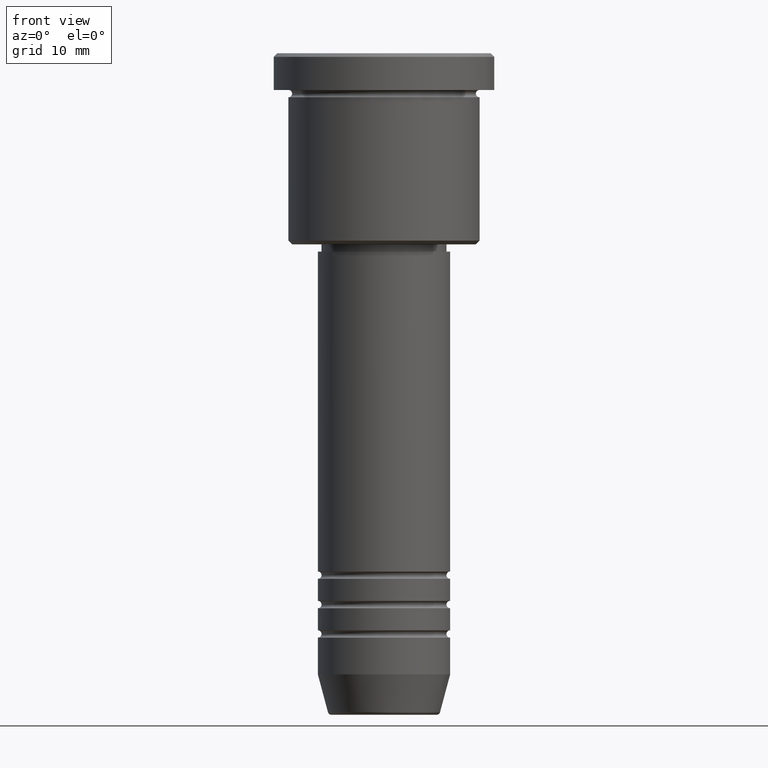
[diagram: clean part render]
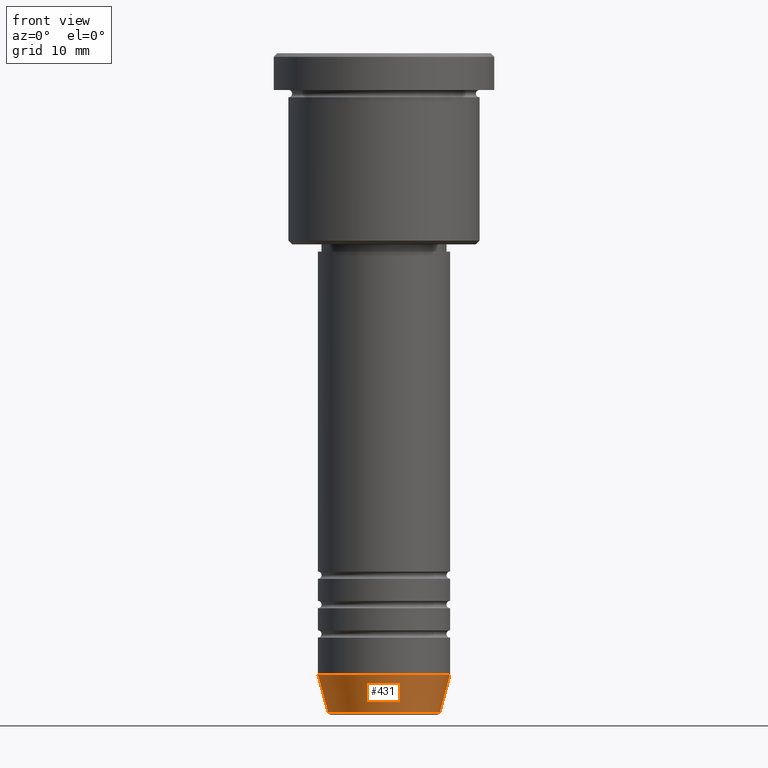
[diagram: same view with one face highlighted and labeled with its STEP entity id]
A machine part, front view. The second image highlights one B-rep face of the part: STEP entity #431.
In plain terms, the highlighted conical surface has half-angle 15 deg.
Its self-contained STEP definition (entity closure, byte-faithful):
#11 = CARTESIAN_POINT ( 'NONE',  ( 9.000000000000001776, 0.000000000000000000, -84.49999999999998579 ) ) ;
#15 = DIRECTION ( 'NONE',  ( -0.000000000000000000, -0.000000000000000000, 1.000000000000000000 ) ) ;
#64 = CARTESIAN_POINT ( 'NONE',  ( 9.000000000000001776, 0.000000000000000000, -84.49999999999998579 ) ) ;
#78 = CARTESIAN_POINT ( 'NONE',  ( 0.000000000000000000, 0.000000000000000000, -89.62940952255124216 ) ) ;
#92 = VERTEX_POINT ( 'NONE', #820 ) ;
#166 = DIRECTION ( 'NONE',  ( 1.000000000000000000, 0.000000000000000000, 0.000000000000000000 ) ) ;
#172 = DIRECTION ( 'NONE',  ( -0.000000000000000000, -0.000000000000000000, 1.000000000000000000 ) ) ;
#203 = EDGE_LOOP ( 'NONE', ( #591, #1162, #728, #859 ) ) ;
#246 = VERTEX_POINT ( 'NONE', #385 ) ;
#252 = AXIS2_PLACEMENT_3D ( 'NONE', #260, #582, #166 ) ;
#258 = LINE ( 'NONE', #1152, #732 ) ;
#260 = CARTESIAN_POINT ( 'NONE',  ( 0.000000000000000000, 0.000000000000000000, -84.49999999999998579 ) ) ;
#340 = CIRCLE ( 'NONE', #545, 9.000000000000001776 ) ;
#349 = DIRECTION ( 'NONE',  ( 1.000000000000000000, 0.000000000000000000, 0.000000000000000000 ) ) ;
#356 = CARTESIAN_POINT ( 'NONE',  ( 7.625578860783879698, 0.000000000000000000, -89.62940952255124216 ) ) ;
#359 = EDGE_CURVE ( 'NONE', #92, #246, #258, .T. ) ;
#385 = CARTESIAN_POINT ( 'NONE',  ( -9.000000000000001776, 1.102182119232617911E-15, -84.49999999999998579 ) ) ;
#431 = ADVANCED_FACE ( 'NONE', ( #959 ), #1068, .T. ) ;
#443 = LINE ( 'NONE', #11, #693 ) ;
#545 = AXIS2_PLACEMENT_3D ( 'NONE', #1085, #15, #349 ) ;
#552 = VERTEX_POINT ( 'NONE', #356 ) ;
#582 = DIRECTION ( 'NONE',  ( -0.000000000000000000, -0.000000000000000000, 1.000000000000000000 ) ) ;
#591 = ORIENTED_EDGE ( 'NONE', *, *, #359, .F. ) ;
#610 = DIRECTION ( 'NONE',  ( 1.000000000000000000, 0.000000000000000000, 0.000000000000000000 ) ) ;
#693 = VECTOR ( 'NONE', #1080, 1000.000000000000000 ) ;
#728 = ORIENTED_EDGE ( 'NONE', *, *, #997, .T. ) ;
#732 = VECTOR ( 'NONE', #788, 1000.000000000000000 ) ;
#788 = DIRECTION ( 'NONE',  ( -0.2588190451025214056, 3.169619151431772953E-17, 0.9659258262890680902 ) ) ;
#816 = VERTEX_POINT ( 'NONE', #64 ) ;
#820 = CARTESIAN_POINT ( 'NONE',  ( -7.625578860783880586, 1.018023096791544096E-15, -89.62940952255124216 ) ) ;
#859 = ORIENTED_EDGE ( 'NONE', *, *, #943, .F. ) ;
#910 = CIRCLE ( 'NONE', #1111, 7.625578860783879698 ) ;
#943 = EDGE_CURVE ( 'NONE', #246, #816, #340, .T. ) ;
#959 = FACE_OUTER_BOUND ( 'NONE', #203, .T. ) ;
#997 = EDGE_CURVE ( 'NONE', #552, #816, #443, .T. ) ;
#1021 = EDGE_CURVE ( 'NONE', #92, #552, #910, .T. ) ;
#1068 = CONICAL_SURFACE ( 'NONE', #252, 9.000000000000001776, 0.2617993877991501295 ) ;
#1080 = DIRECTION ( 'NONE',  ( 0.2588190451025214056, 0.000000000000000000, 0.9659258262890680902 ) ) ;
#1085 = CARTESIAN_POINT ( 'NONE',  ( 0.000000000000000000, 0.000000000000000000, -84.49999999999998579 ) ) ;
#1111 = AXIS2_PLACEMENT_3D ( 'NONE', #78, #172, #610 ) ;
#1152 = CARTESIAN_POINT ( 'NONE',  ( -9.000000000000001776, 1.102182119232617911E-15, -84.49999999999998579 ) ) ;
#1162 = ORIENTED_EDGE ( 'NONE', *, *, #1021, .T. ) ;